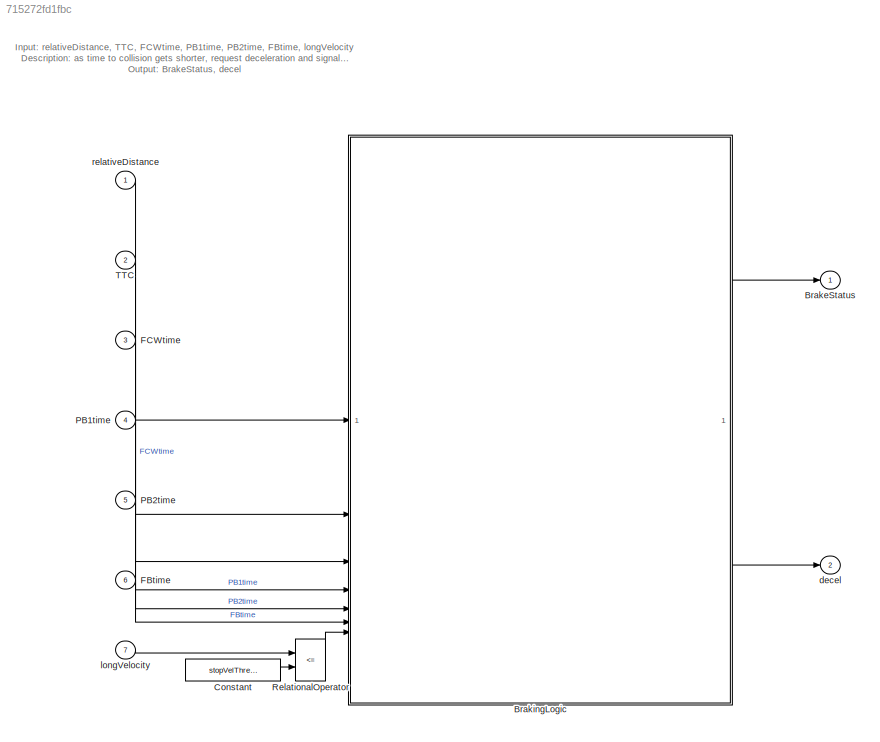
MODEL slx_715272fd1fbc
KIND model
CONFIG AbsTol = auto
CONFIG EnableMultiTasking = on
CONFIG FixedStep = auto
CONFIG MaxStep = auto
CONFIG MinStep = auto
CONFIG RelTol = 1e-3
CONFIG SampleTimeConstraint = Unconstrained
CONFIG SolverName = FixedStepDiscrete
CONFIG StartTime = 0.0
CONFIG StopTime = 10.0
BLOCK [Outport] BrakeStatus
  OutDataTypeStr = Enum: BrStatus
  PortDimensions = BrStatus_Dimensions
  SampleTime = Ts
  SamplingMode = Sample based
  SignalType = real
  VarSizeSig = No
  VectorParamsAs1DForOutWhenUnconnected = off
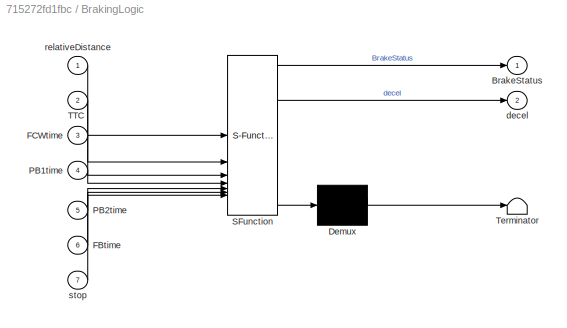
BLOCK [SubSystem] BrakingLogic
  ErrorFcn = Stateflow.Translate.translate
  PermitHierarchicalResolution = ExplicitOnly
  SFBlockType = Chart
  TreatAsAtomicUnit = on
BLOCK [Demux] BrakingLogic/ Demux 
  Outputs = 1
BLOCK [S-Function] BrakingLogic/ SFunction 
  EnableBusSupport = off
  FunctionName = sf_sfun
  PortCounts = [7 3]
  SFcnIsStateOwnerBlock = off
  SFunctionDeploymentMode = off
  Tag = Stateflow S-Function 2
BLOCK [Terminator] BrakingLogic/ Terminator 
BLOCK [Outport] BrakingLogic/BrakeStatus
  VectorParamsAs1DForOutWhenUnconnected = off
BLOCK [Inport] BrakingLogic/FBtime
  Port = 6
BLOCK [Inport] BrakingLogic/FCWtime
  Port = 3
BLOCK [Inport] BrakingLogic/PB1time
  Port = 4
BLOCK [Inport] BrakingLogic/PB2time
  Port = 5
BLOCK [Inport] BrakingLogic/TTC
  Port = 2
BLOCK [Outport] BrakingLogic/decel
  Port = 2
  VectorParamsAs1DForOutWhenUnconnected = off
BLOCK [Inport] BrakingLogic/relativeDistance
BLOCK [Inport] BrakingLogic/stop
  Port = 7
BLOCK [Constant] Constant
  AttributesFormatString = %<SampleTime>
  SampleTime = Ts
  Value = stopVelThreshold
BLOCK [Inport] FBtime
  OutDataTypeStr = StopTime_DType
  OutMax = StopTime_Max
  OutMin = StopTime_Min
  Port = 6
  PortDimensions = StopTime_Dimensions
  SampleTime = Ts
  SamplingMode = Sample based
  SignalType = real
  Unit = s
BLOCK [Inport] FCWtime
  OutDataTypeStr = StopTime_DType
  OutMax = StopTime_Max
  OutMin = StopTime_Min
  Port = 3
  PortDimensions = StopTime_Dimensions
  SampleTime = Ts
  SamplingMode = Sample based
  SignalType = real
  Unit = s
BLOCK [Inport] PB1time
  OutDataTypeStr = StopTime_DType
  OutMax = StopTime_Max
  OutMin = StopTime_Min
  Port = 4
  PortDimensions = StopTime_Dimensions
  SampleTime = Ts
  SamplingMode = Sample based
  SignalType = real
  Unit = s
BLOCK [Inport] PB2time
  OutDataTypeStr = StopTime_DType
  OutMax = StopTime_Max
  OutMin = StopTime_Min
  Port = 5
  PortDimensions = StopTime_Dimensions
  SampleTime = Ts
  SamplingMode = Sample based
  SignalType = real
  Unit = s
BLOCK [RelationalOperator] RelationalOperator
  InputSameDT = off
  Operator = <=
  RndMeth = Simplest
BLOCK [Inport] TTC
  OutDataTypeStr = TTC_DType
  OutMax = TTC_Max
  OutMin = TTC_Min
  Port = 2
  PortDimensions = TTC_Dimensions
  SampleTime = Ts
  SamplingMode = Sample based
  SignalType = real
  Unit = s
BLOCK [Outport] decel
  OutDataTypeStr = Acceleration_DType
  OutMax = FB_decel
  OutMin = Default_decel
  Port = 2
  PortDimensions = Acceleration_Dimensions
  SampleTime = Ts
  SamplingMode = Sample based
  SignalType = real
  Unit = m/s^2
  VectorParamsAs1DForOutWhenUnconnected = off
BLOCK [Inport] longVelocity
  OutDataTypeStr = Velocity_DType
  OutMax = Velocity_Max
  OutMin = Velocity_Min
  Port = 7
  PortDimensions = Velocity_Dimensions
  SampleTime = Ts
  SamplingMode = Sample based
  SignalType = real
  Unit = m/s
BLOCK [Inport] relativeDistance
  OutDataTypeStr = Distance_DType
  PortDimensions = Distance_Dimensions
  SampleTime = Ts
  SamplingMode = Sample based
  SignalType = real
  Unit = m
ANNOTATION (root): Input: relativeDistance, TTC, FCWtime, PB1time, PB2time, FBtime, longVelocity Description: as time to collision gets shorter, request deceleration and signal the braking status. 4 Levels are identified warning, partial braking 1/2 and full braking. Output: BrakeStatus, decel
LINE BrakingLogic:1 -> BrakeStatus:1
LINE BrakingLogic:2 -> decel:1
LINE Constant:1 -> RelationalOperator:2
LINE FBtime:1 -> BrakingLogic:6
LINE FCWtime:1 -> BrakingLogic:3
LINE PB1time:1 -> BrakingLogic:4
LINE PB2time:1 -> BrakingLogic:5
LINE RelationalOperator:1 -> BrakingLogic:7
LINE TTC:1 -> BrakingLogic:2
LINE longVelocity:1 -> RelationalOperator:1
LINE relativeDistance:1 -> BrakingLogic:1
CHART BrakingLogic states=5 transitions=16
  STATE_LABEL 'Default\nentry: \n BrakeStatus = BrStatus.NoBrake;\n decel = Default_decel;'
  STATE_LABEL 'FCW\nentry: \n BrakeStatus = BrStatus.NoBrake;\n decel = Default_decel;\n'
  STATE_LABEL 'Partial_Braking1\nentry: \n BrakeStatus = BrStatus.PB1Brake;\n decel = PB1_decel;\n'
  STATE_LABEL 'Partial_Braking2\nentry:  \n BrakeStatus =BrStatus.PB2Brake;\n decel = PB2_decel;\n'
  STATE_LABEL 'Full_Braking\nentry: \n BrakeStatus = BrStatus.FBrake;\n decel = FB_decel;\n'
CHART  states=0 transitions=0
